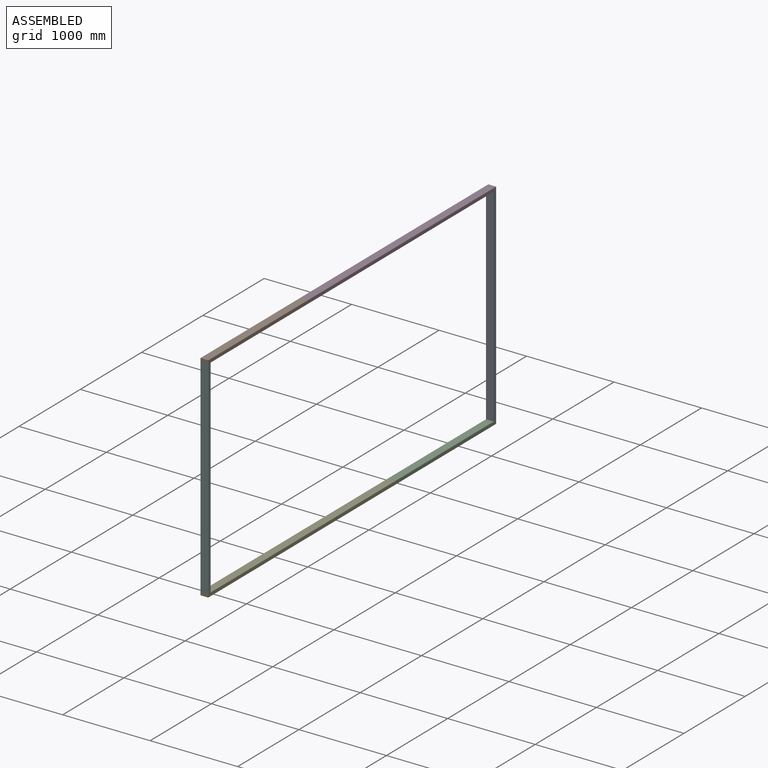
[diagram: assembled view]
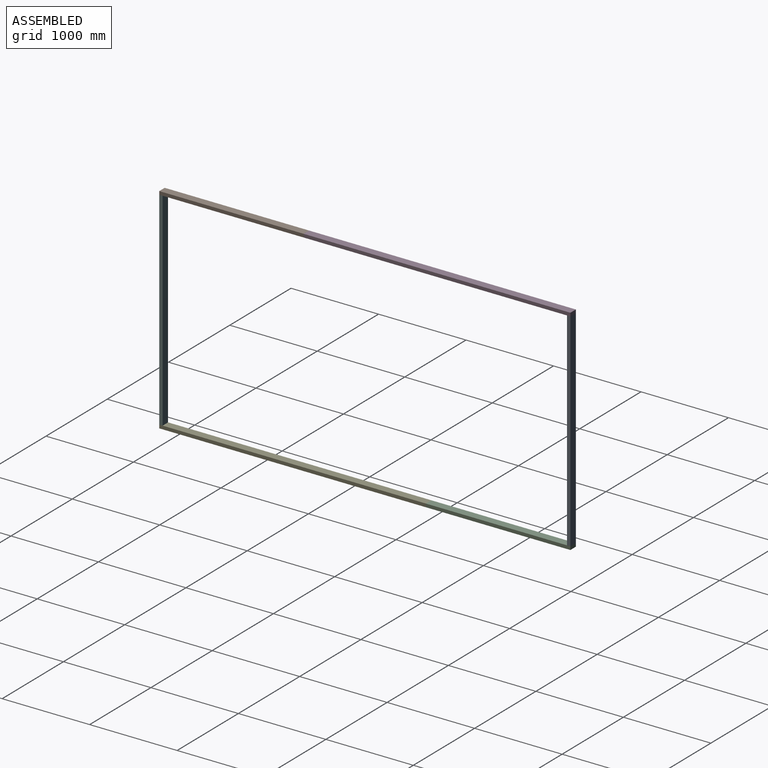
[diagram: assembled view, second angle]
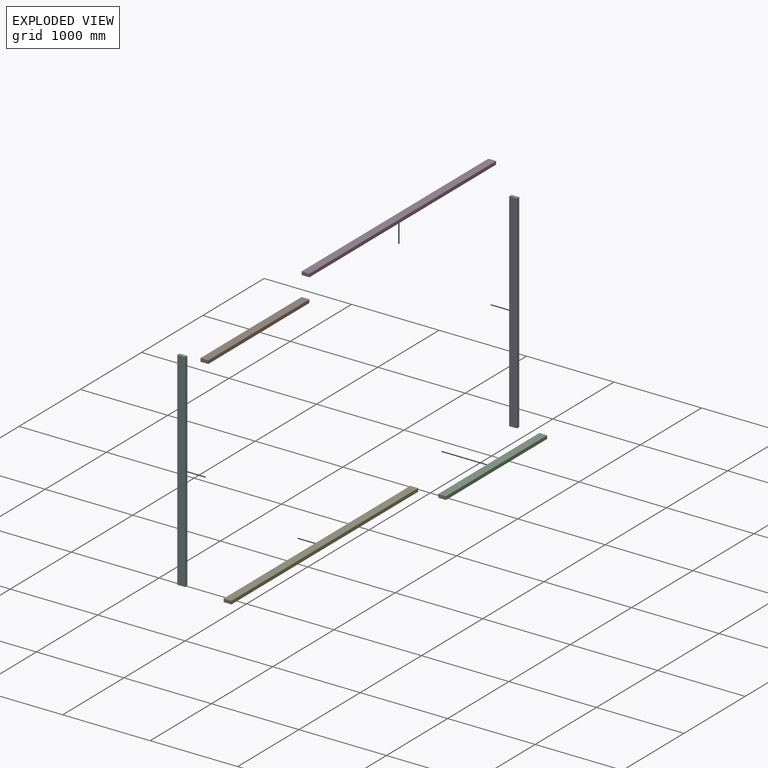
[diagram: exploded view]
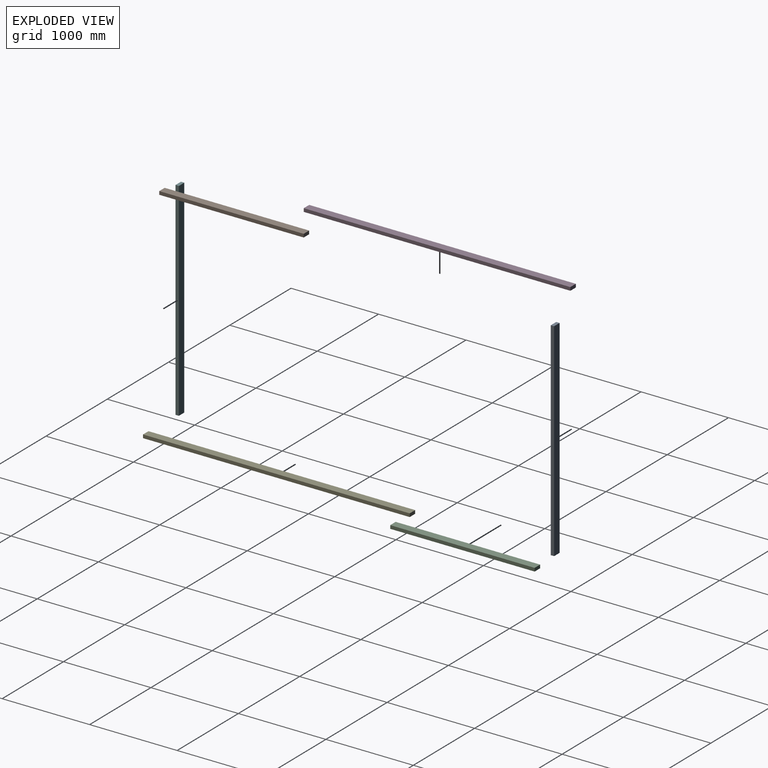
[diagram: exploded view, second angle]
ASSEMBLY  parts=6 mates=2
PART A: 6 faces, bbox 38.1x2374.9x88.9 mm
  f0: plane 2374.9x38.1mm, normal (0,0,-1), area 90483.7mm2, adj f1,f3,f4,f5
  f1: plane 2374.9x88.9mm, normal (1,0,0), area 211128.6mm2, adj f0,f2,f4,f5
  f2: plane 2374.9x38.1mm, normal (0,0,1), area 90483.7mm2, adj f1,f3,f4,f5
  f3: plane 2374.9x88.9mm, normal (-1,0,0), area 211128.6mm2, adj f0,f2,f4,f5
  f4: plane 88.9x38.1mm, normal (0,1,0), area 3387.1mm2, adj f0,f1,f2,f3
  f5: plane 88.9x38.1mm, normal (0,-1,0), area 3387.1mm2, adj f0,f1,f2,f3
PART B: 6 faces, bbox 38.1x1651x88.9 mm
  f0: plane 1651x38.1mm, normal (0,0,-1), area 62903.1mm2, adj f1,f3,f4,f5
  f1: plane 1651x88.9mm, normal (1,0,0), area 146773.9mm2, adj f0,f2,f4,f5
  f2: plane 1651x38.1mm, normal (0,0,1), area 62903.1mm2, adj f1,f3,f4,f5
  f3: plane 1651x88.9mm, normal (-1,0,0), area 146773.9mm2, adj f0,f2,f4,f5
  f4: plane 88.9x38.1mm, normal (0,1,0), area 3387.1mm2, adj f0,f1,f2,f3
  f5: plane 88.9x38.1mm, normal (0,-1,0), area 3387.1mm2, adj f0,f1,f2,f3
PART C: same geometry as B
PART D: 6 faces, bbox 38.1x3048x88.9 mm
  f0: plane 3048x88.9mm, normal (-1,0,0), area 270967.2mm2, adj f1,f3,f4,f5
  f1: plane 3048x38.1mm, normal (0,0,-1), area 116128.8mm2, adj f0,f2,f4,f5
  f2: plane 3048x88.9mm, normal (1,0,0), area 270967.2mm2, adj f1,f3,f4,f5
  f3: plane 3048x38.1mm, normal (0,0,1), area 116128.8mm2, adj f0,f2,f4,f5
  f4: plane 88.9x38.1mm, normal (0,1,0), area 3387.1mm2, adj f0,f1,f2,f3
  f5: plane 88.9x38.1mm, normal (0,-1,0), area 3387.1mm2, adj f0,f1,f2,f3
PART E: same geometry as D
PART F: same geometry as A
PLACE A rot(axis=(0.58,0.58,0.58),120deg) t=(1419.07,2388,168.07)mm
PLACE B rot(axis=(0,1,0),90deg) t=(1419.07,-2349.1,2181.34)mm
PLACE C rot(axis=(0,1,0),90deg) t=(1419.07,698.9,-231.66)mm
PLACE D rot(axis=(0,-1,0),90deg) t=(1507.97,-698.1,2466.77)mm
PLACE E rot(axis=(0,-1,0),90deg) t=(1507.97,-2349.1,53.77)mm
PLACE F rot(axis=(0.58,0.58,0.58),120deg) t=(1419.07,-2272.9,168.07)mm
MATE fastened B.f3 <-> D.f2  axis (0,0,1) through (1507.97,-698.1,2581.07)mm
MATE fastened F.f5 <-> E.f2  axis (0,0,-1) through (1507.97,-2349.1,168.07)mm
